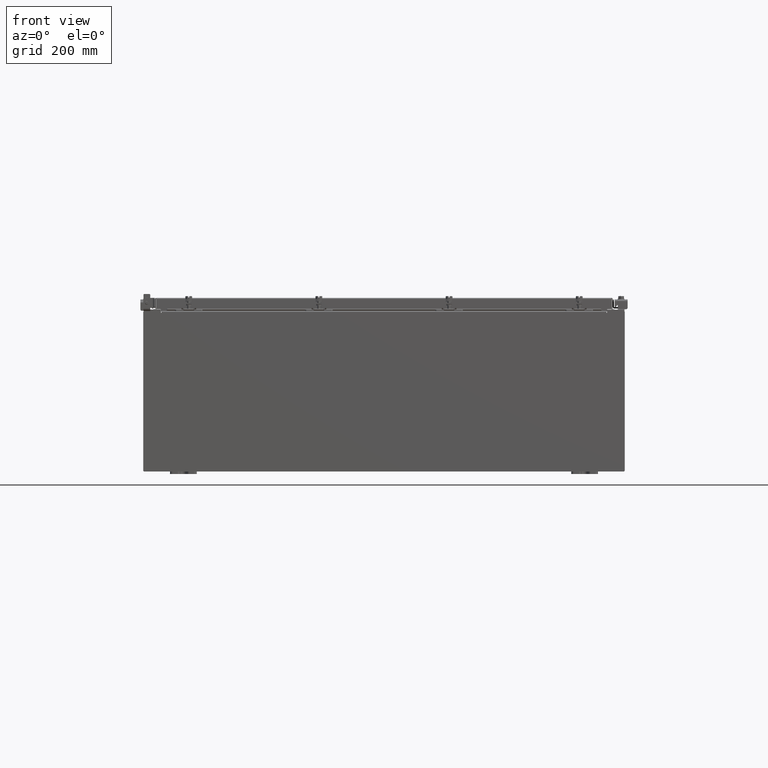
[diagram: clean part render]
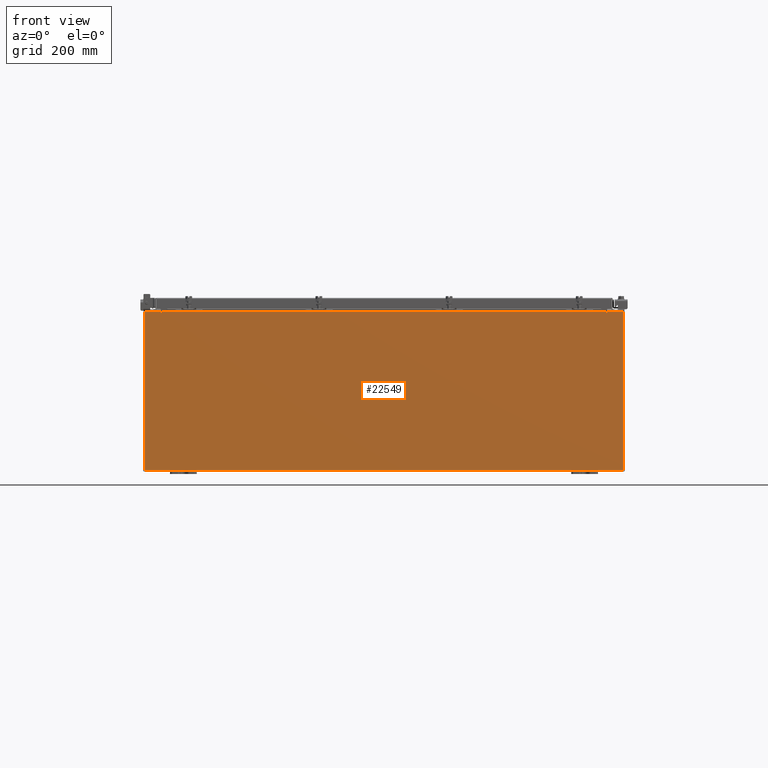
[diagram: same view with one face highlighted and labeled with its STEP entity id]
A machine part, front view. The second image highlights one B-rep face of the part: STEP entity #22549.
In plain terms, the highlighted planar face has unit normal (-0, 1, -0).
Its self-contained STEP definition (entity closure, byte-faithful):
#92 = VECTOR ( 'NONE', #7529, 39.37007874015748100 ) ;
#730 = LINE ( 'NONE', #24328, #92 ) ;
#1034 = VECTOR ( 'NONE', #19139, 39.37007874015748100 ) ;
#1125 = ORIENTED_EDGE ( 'NONE', *, *, #16040, .F. ) ;
#1729 = ORIENTED_EDGE ( 'NONE', *, *, #3649, .F. ) ;
#2053 = DIRECTION ( 'NONE',  ( 1.000000000000000000, 0.0000000000000000000, 3.048036009064577000E-017 ) ) ;
#2076 = VECTOR ( 'NONE', #26023, 39.37007874015748100 ) ;
#2319 = VECTOR ( 'NONE', #2053, 39.37007874015748100 ) ;
#2463 = DIRECTION ( 'NONE',  ( 0.0000000000000000000, 0.0000000000000000000, 1.000000000000000000 ) ) ;
#3009 = CARTESIAN_POINT ( 'NONE',  ( 17.92530000000000400, 0.0000000000000000000, -5.925300000000000000 ) ) ;
#3055 = VERTEX_POINT ( 'NONE', #15126 ) ;
#3068 = DIRECTION ( 'NONE',  ( -0.0000000000000000000, 1.000000000000000000, -0.0000000000000000000 ) ) ;
#3267 = VECTOR ( 'NONE', #8641, 39.37007874015748100 ) ;
#3570 = LINE ( 'NONE', #26517, #24646 ) ;
#3649 = EDGE_CURVE ( 'NONE', #18589, #5717, #12678, .T. ) ;
#3918 = AXIS2_PLACEMENT_3D ( 'NONE', #9924, #24603, #12010 ) ;
#3986 = EDGE_CURVE ( 'NONE', #11397, #21740, #5414, .T. ) ;
#4031 = CARTESIAN_POINT ( 'NONE',  ( -16.63720000000000000, -0.0000000000000000000, 5.874949999999999200 ) ) ;
#4960 = ORIENTED_EDGE ( 'NONE', *, *, #14981, .T. ) ;
#5361 = DIRECTION ( 'NONE',  ( -0.0000000000000000000, -0.0000000000000000000, 1.000000000000000000 ) ) ;
#5414 = LINE ( 'NONE', #15924, #27067 ) ;
#5708 = LINE ( 'NONE', #7480, #26719 ) ;
#5717 = VERTEX_POINT ( 'NONE', #22496 ) ;
#5726 = VERTEX_POINT ( 'NONE', #16386 ) ;
#5887 = VECTOR ( 'NONE', #8196, 39.37007874015748100 ) ;
#6053 = CARTESIAN_POINT ( 'NONE',  ( 17.92530000000000400, 0.0000000000000000000, 5.925300000000000000 ) ) ;
#6092 = DIRECTION ( 'NONE',  ( 0.0000000000000000000, -1.000000000000000000, 0.0000000000000000000 ) ) ;
#6628 = ORIENTED_EDGE ( 'NONE', *, *, #16311, .T. ) ;
#7171 = CARTESIAN_POINT ( 'NONE',  ( -17.92529999999999600, 0.0000000000000000000, -5.925300000000000000 ) ) ;
#7480 = CARTESIAN_POINT ( 'NONE',  ( -17.92529999999999600, 0.0000000000000000000, 5.925299999999999100 ) ) ;
#7529 = DIRECTION ( 'NONE',  ( 0.0000000000000000000, 0.0000000000000000000, 1.000000000000000000 ) ) ;
#7725 = VECTOR ( 'NONE', #2463, 39.37007874015748100 ) ;
#7938 = LINE ( 'NONE', #8357, #2319 ) ;
#8135 = PLANE ( 'NONE',  #14959 ) ;
#8196 = DIRECTION ( 'NONE',  ( 0.0000000000000000000, 0.0000000000000000000, -1.000000000000000000 ) ) ;
#8347 = ORIENTED_EDGE ( 'NONE', *, *, #14883, .T. ) ;
#8357 = CARTESIAN_POINT ( 'NONE',  ( -17.92529999999999600, 0.0000000000000000000, 5.925299999999999100 ) ) ;
#8358 = ORIENTED_EDGE ( 'NONE', *, *, #3986, .F. ) ;
#8641 = DIRECTION ( 'NONE',  ( -1.000000000000000000, -0.0000000000000000000, -0.0000000000000000000 ) ) ;
#8791 = ORIENTED_EDGE ( 'NONE', *, *, #23111, .F. ) ;
#8911 = LINE ( 'NONE', #23320, #3267 ) ;
#9413 = EDGE_CURVE ( 'NONE', #21214, #17553, #10300, .T. ) ;
#9657 = DIRECTION ( 'NONE',  ( -8.681145560799821800E-014, 0.0000000000000000000, -1.000000000000000000 ) ) ;
#9924 = CARTESIAN_POINT ( 'NONE',  ( 16.65587500000000500, 0.0000000000000000000, 5.874949999999999200 ) ) ;
#10238 = ORIENTED_EDGE ( 'NONE', *, *, #23838, .F. ) ;
#10300 = CIRCLE ( 'NONE', #23420, 0.01867499999999949400 ) ;
#11397 = VERTEX_POINT ( 'NONE', #27115 ) ;
#12010 = DIRECTION ( 'NONE',  ( 0.0000000000000000000, 0.0000000000000000000, -1.000000000000000000 ) ) ;
#12393 = VERTEX_POINT ( 'NONE', #3009 ) ;
#12678 = LINE ( 'NONE', #15103, #7725 ) ;
#13097 = ORIENTED_EDGE ( 'NONE', *, *, #9413, .F. ) ;
#13512 = FACE_OUTER_BOUND ( 'NONE', #23086, .T. ) ;
#13744 = ORIENTED_EDGE ( 'NONE', *, *, #21969, .T. ) ;
#13998 = ORIENTED_EDGE ( 'NONE', *, *, #23236, .T. ) ;
#14883 = EDGE_CURVE ( 'NONE', #5726, #5717, #24462, .T. ) ;
#14959 = AXIS2_PLACEMENT_3D ( 'NONE', #16628, #6092, #20838 ) ;
#14981 = EDGE_CURVE ( 'NONE', #17850, #19631, #5708, .T. ) ;
#15103 = CARTESIAN_POINT ( 'NONE',  ( 16.63720000000000400, 0.0000000000000000000, 0.0000000000000000000 ) ) ;
#15126 = CARTESIAN_POINT ( 'NONE',  ( -16.67455000000000000, 0.0000000000000000000, 5.925299999999999100 ) ) ;
#15733 = CARTESIAN_POINT ( 'NONE',  ( -16.65587499999999800, 0.0000000000000000000, 5.874949999999999200 ) ) ;
#15924 = CARTESIAN_POINT ( 'NONE',  ( 16.67454999999949500, -0.0000000000000000000, -1.447541957108302900E-012 ) ) ;
#16040 = EDGE_CURVE ( 'NONE', #17553, #3055, #730, .T. ) ;
#16311 = EDGE_CURVE ( 'NONE', #19631, #3055, #23422, .T. ) ;
#16386 = CARTESIAN_POINT ( 'NONE',  ( -16.63720000000000000, 3.756290991288361700E-016, 5.912299999999999200 ) ) ;
#16628 = CARTESIAN_POINT ( 'NONE',  ( 0.0000000000000000000, 0.0000000000000000000, 0.0000000000000000000 ) ) ;
#17044 = CARTESIAN_POINT ( 'NONE',  ( -17.92529999999999600, 0.0000000000000000000, 5.925299999999999100 ) ) ;
#17553 = VERTEX_POINT ( 'NONE', #23078 ) ;
#17850 = VERTEX_POINT ( 'NONE', #7171 ) ;
#17851 = DIRECTION ( 'NONE',  ( 0.0000000000000000000, 0.0000000000000000000, -1.000000000000000000 ) ) ;
#18307 = EDGE_CURVE ( 'NONE', #12393, #17850, #8911, .T. ) ;
#18322 = CARTESIAN_POINT ( 'NONE',  ( 16.67455000000000400, 0.0000000000000000000, 5.874949999999999200 ) ) ;
#18589 = VERTEX_POINT ( 'NONE', #21575 ) ;
#19117 = ORIENTED_EDGE ( 'NONE', *, *, #18307, .T. ) ;
#19139 = DIRECTION ( 'NONE',  ( 1.000000000000000000, 0.0000000000000000000, 3.048036009064577000E-017 ) ) ;
#19631 = VERTEX_POINT ( 'NONE', #25068 ) ;
#20270 = DIRECTION ( 'NONE',  ( 0.0000000000000000000, 0.0000000000000000000, -1.000000000000000000 ) ) ;
#20838 = DIRECTION ( 'NONE',  ( 0.0000000000000000000, -0.0000000000000000000, -1.000000000000000000 ) ) ;
#21214 = VERTEX_POINT ( 'NONE', #4031 ) ;
#21560 = CARTESIAN_POINT ( 'NONE',  ( 17.92530000000000400, 0.0000000000000000000, 5.925300000000000000 ) ) ;
#21575 = CARTESIAN_POINT ( 'NONE',  ( 16.63720000000000400, 0.0000000000000000000, 5.874949999999999200 ) ) ;
#21740 = VERTEX_POINT ( 'NONE', #18322 ) ;
#21842 = CARTESIAN_POINT ( 'NONE',  ( -16.63720000000000000, 3.756290991288361700E-016, 5.912299999999999200 ) ) ;
#21969 = EDGE_CURVE ( 'NONE', #11397, #22806, #7938, .T. ) ;
#22496 = CARTESIAN_POINT ( 'NONE',  ( 16.63720000000000400, 0.0000000000000000000, 5.912299999999999200 ) ) ;
#22549 = ADVANCED_FACE ( 'NONE', ( #13512 ), #8135, .F. ) ;
#22641 = CIRCLE ( 'NONE', #3918, 0.01867499999999949400 ) ;
#22671 = LINE ( 'NONE', #6053, #5887 ) ;
#22806 = VERTEX_POINT ( 'NONE', #21560 ) ;
#23078 = CARTESIAN_POINT ( 'NONE',  ( -16.67455000000000000, 0.0000000000000000000, 5.874949999999999200 ) ) ;
#23086 = EDGE_LOOP ( 'NONE', ( #1125, #13097, #8791, #8347, #1729, #10238, #8358, #13744, #13998, #19117, #4960, #6628 ) ) ;
#23111 = EDGE_CURVE ( 'NONE', #5726, #21214, #3570, .T. ) ;
#23236 = EDGE_CURVE ( 'NONE', #22806, #12393, #22671, .T. ) ;
#23320 = CARTESIAN_POINT ( 'NONE',  ( -17.92529999999999600, 0.0000000000000000000, -5.925300000000000000 ) ) ;
#23420 = AXIS2_PLACEMENT_3D ( 'NONE', #15733, #3068, #17851 ) ;
#23422 = LINE ( 'NONE', #17044, #1034 ) ;
#23838 = EDGE_CURVE ( 'NONE', #21740, #18589, #22641, .T. ) ;
#24328 = CARTESIAN_POINT ( 'NONE',  ( -16.67455000000000000, -0.0000000000000000000, 0.0000000000000000000 ) ) ;
#24462 = LINE ( 'NONE', #21842, #2076 ) ;
#24603 = DIRECTION ( 'NONE',  ( -0.0000000000000000000, 1.000000000000000000, -0.0000000000000000000 ) ) ;
#24646 = VECTOR ( 'NONE', #20270, 39.37007874015748100 ) ;
#25068 = CARTESIAN_POINT ( 'NONE',  ( -17.92529999999999600, 0.0000000000000000000, 5.925299999999999100 ) ) ;
#26023 = DIRECTION ( 'NONE',  ( 1.000000000000000000, 0.0000000000000000000, 0.0000000000000000000 ) ) ;
#26517 = CARTESIAN_POINT ( 'NONE',  ( -16.63720000000000000, -0.0000000000000000000, 0.0000000000000000000 ) ) ;
#26719 = VECTOR ( 'NONE', #5361, 39.37007874015748100 ) ;
#27067 = VECTOR ( 'NONE', #9657, 39.37007874015748100 ) ;
#27115 = CARTESIAN_POINT ( 'NONE',  ( 16.67455000000000700, 0.0000000000000000000, 5.925300000000000000 ) ) ;